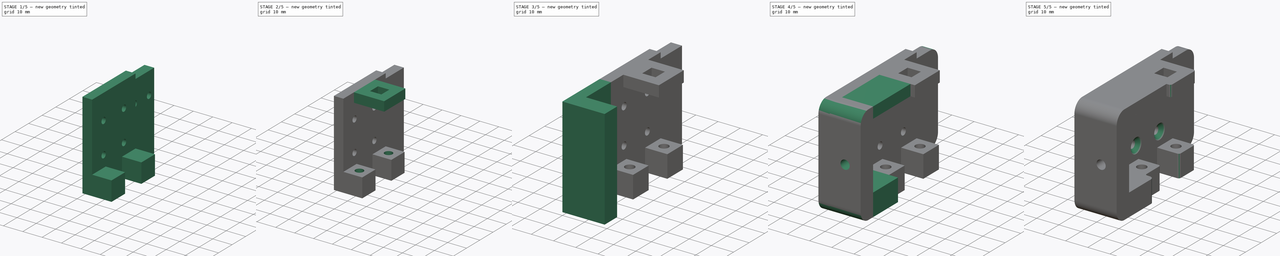
[diagram: build sequence overview — one tinted view per stage of 5, left to right]
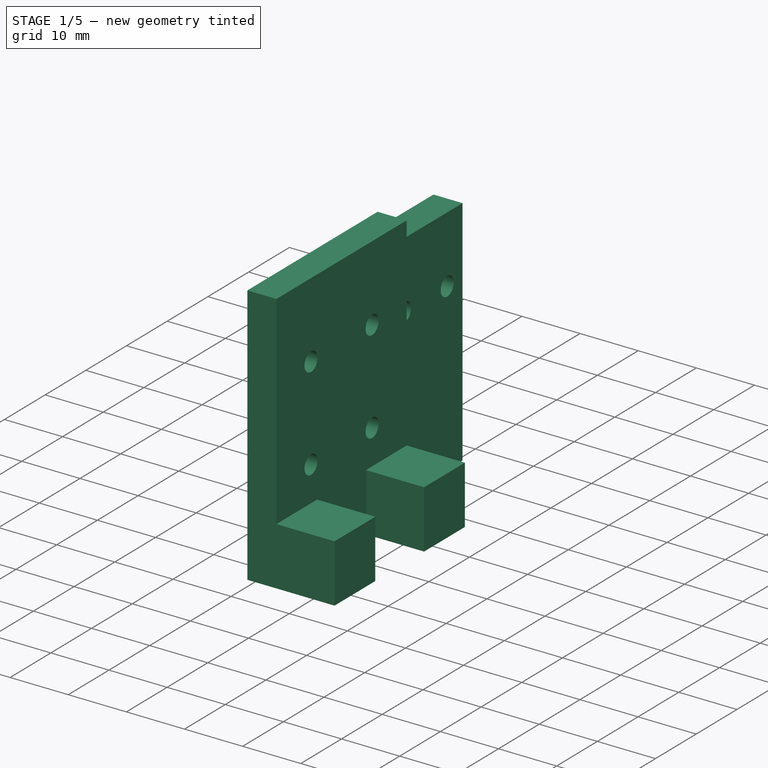
[diagram: stage 1 of 5 — iso view after this stage's code; geometry added in this stage tinted green]
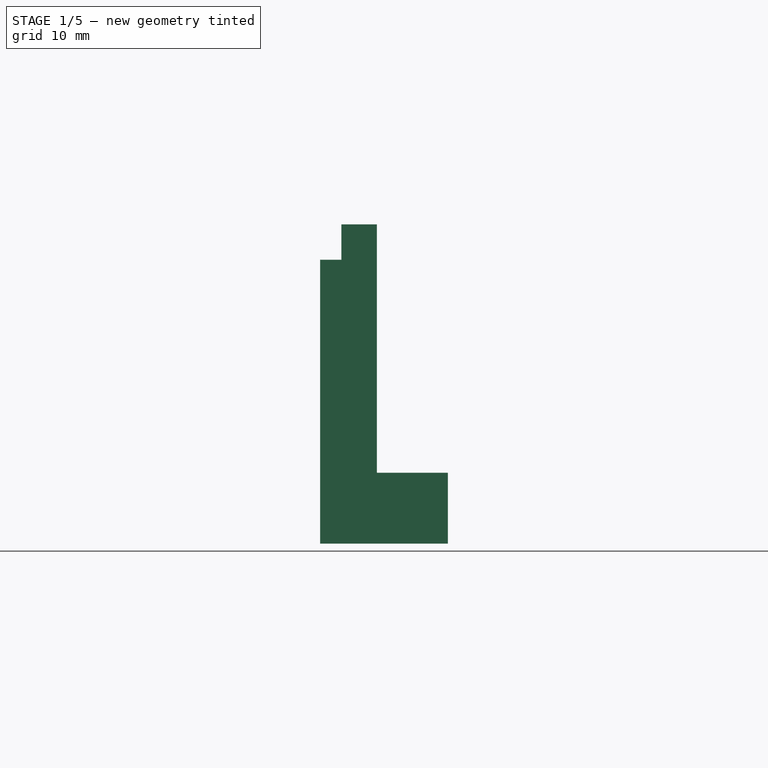
[diagram: stage 1 of 5 — front view after this stage's code; geometry added in this stage tinted green]
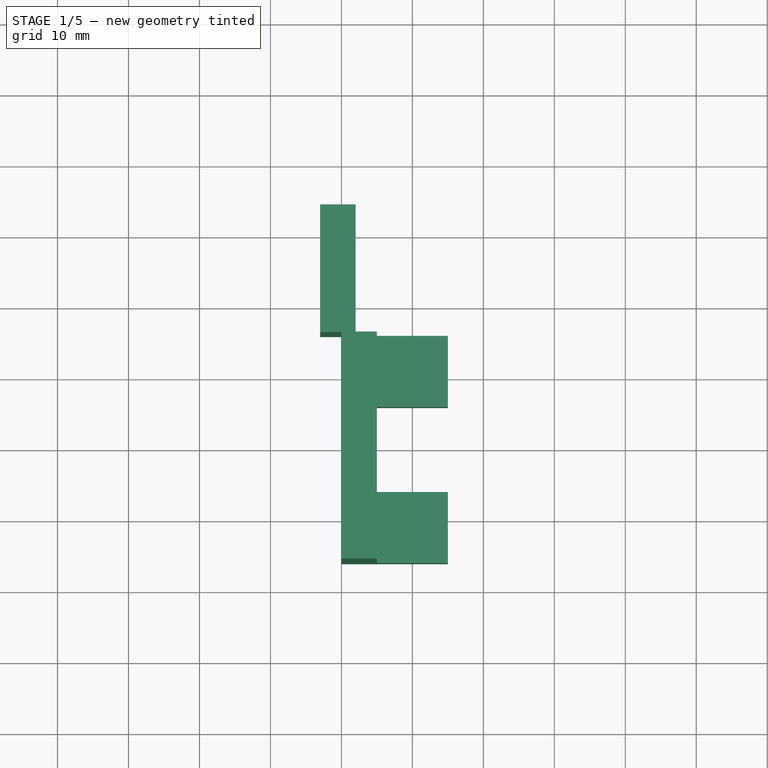
[diagram: stage 1 of 5 — top view after this stage's code; geometry added in this stage tinted green]
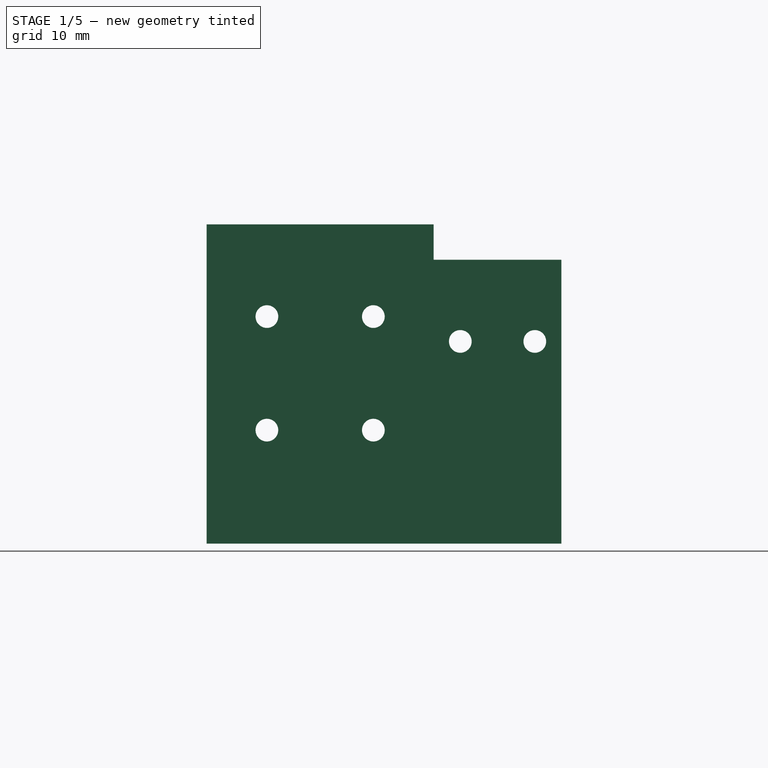
[diagram: stage 1 of 5 — right view after this stage's code; geometry added in this stage tinted green]
FCSTD DOCUMENT  (FreeCAD 0.20R29177 (Git))
Label: Holder_nema_up
License: All rights reserved
LicenseURL: http://en.wikipedia.org/wiki/All_rights_reserved
objects: Sketcher::SketchObject×14, PartDesign::Pad×8, PartDesign::Plane×7, PartDesign::Pocket×6, PartDesign::Fillet×4, PartDesign::Hole×1, PartDesign::Body×1
note: 60 computed .brp shape members not serialized (recipe doc carries the construction recipe); baked Part::Feature solids carry a one-line shape summary decoded from their .brp

FEATURE [Sketcher::SketchObject] Sketch
  FullyConstrained = false
  MapMode = 5
  Placement = pos=(0,0,0) rot=(0.57735,0.57735,0.57735;2.0944rad)
  Support = -> [YZ_Plane]
  sketch-geometry (8):
    g0: Circle CenterX=-7.5 CenterY=28 CenterZ=0 NormalX=0 NormalY=0 NormalZ=1 AngleXU=0 Radius=1.6
    g1: Circle CenterX=7.5 CenterY=28 CenterZ=0 NormalX=0 NormalY=0 NormalZ=1 AngleXU=0 Radius=1.6
    g2: Circle CenterX=-7.5 CenterY=12 CenterZ=0 NormalX=0 NormalY=0 NormalZ=1 AngleXU=0 Radius=1.6
    g3: Circle CenterX=7.5 CenterY=12 CenterZ=0 NormalX=0 NormalY=0 NormalZ=1 AngleXU=0 Radius=1.6
    g4: LineSegment StartX=-16 StartY=41 StartZ=0 EndX=-16 EndY=-4 EndZ=0
    g5: LineSegment StartX=-16 StartY=41 StartZ=0 EndX=16 EndY=41 EndZ=0
    g6: LineSegment StartX=-16 StartY=-4 StartZ=0 EndX=16 EndY=-4 EndZ=0
    g7: LineSegment StartX=16 StartY=-4 StartZ=0 EndX=16 EndY=41 EndZ=0
  constraints (22):
    c: Distance(g2,g-2) = 7.5
    c: Distance(g0,g-2) = 7.5
    c: Distance(g1,g-2) = 7.5
    c: Distance(g3,g-2) = 7.5
    c: Distance(g2,g0) = 16
    c: Distance(g3,g1) = 16
    c: Diameter(g0) = 3.2
    c: Diameter(g1) = 3.2
    c: Diameter(g3) = 3.2
    c: Diameter(g2) = 3.2
    c: Vertical(g4)
    c: DistanceX(g4,g5) = 32
    c: Distance(g4,g-2) = 16
    c: Coincident(g5,g4)
    c: DistanceY(g4,g4) = 45
    c: Coincident(g6,g4)
    c: Horizontal(g6)
    c: PointOnObject(g7,g6)
    c: Coincident(g7,g5)
    c: Vertical(g7)
    c: Block(g6)
    c: DistanceY(g7,g7) = 45
FEATURE [PartDesign::Pad] Pad  label="Plate"
  Direction = (1,-2e-16,3e-16)
  Length = 5
  Length2 = 10
  Placement = pos=(0,0,0) rot=(0.57735,0.57735,0.57735;2.0944rad)
  Profile = -> Sketch
  ReferenceAxis = -> Sketch [N_Axis]
  Type = 0
FEATURE [Sketcher::SketchObject] Sketch001
  FullyConstrained = false
  MapMode = 5
  Placement = pos=(5,-1.1e-15,1.1e-15) rot=(0.57735,0.57735,0.57735;2.0944rad)
  Support = -> [Pad]
  sketch-geometry (8):
    g0: LineSegment StartX=-16 StartY=6 StartZ=0 EndX=-6 EndY=6 EndZ=0
    g1: LineSegment StartX=-6 StartY=6 StartZ=0 EndX=-6 EndY=-4 EndZ=0
    g2: LineSegment StartX=-6 StartY=-4 StartZ=0 EndX=-16 EndY=-4 EndZ=0
    g3: LineSegment StartX=-16 StartY=-4 StartZ=0 EndX=-16 EndY=6 EndZ=0
    g4: LineSegment StartX=16 StartY=6 StartZ=0 EndX=6 EndY=6 EndZ=0
    g5: LineSegment StartX=6 StartY=6 StartZ=0 EndX=6 EndY=-4 EndZ=0
    g6: LineSegment StartX=6 StartY=-4 StartZ=0 EndX=16 EndY=-4 EndZ=0
    g7: LineSegment StartX=16 StartY=-4 StartZ=0 EndX=16 EndY=6 EndZ=0
  constraints (20):
    c: Coincident(g0,g1)
    c: Coincident(g1,g2)
    c: Coincident(g2,g3)
    c: Coincident(g3,g0)
    c: Horizontal(g0)
    c: Horizontal(g2)
    c: Vertical(g1)
    c: Vertical(g3)
    c: Coincident(g4,g5)
    c: Coincident(g5,g6)
    c: Coincident(g6,g7)
    c: Coincident(g7,g4)
    c: Horizontal(g4)
    c: Horizontal(g6)
    c: Vertical(g5)
    c: Vertical(g7)
    c: DistanceX(g0,g0) = 10
    c: DistanceX(g4,g4) = 10
    c: DistanceY(g1,g1) = 10
    c: DistanceY(g7,g7) = 10
FEATURE [PartDesign::Pad] Pad001  label="Holder spring"
  BaseFeature = -> Pad
  Direction = (1,-4e-16,4e-16)
  Length = 10
  Length2 = 10
  Placement = pos=(0,0,0) rot=(0.57735,0.57735,0.57735;2.0944rad)
  Profile = -> Sketch001
  ReferenceAxis = -> Sketch001 [N_Axis]
  Type = 0
FEATURE [PartDesign::Plane] DatumPlane
  AttachmentOffset = pos=(0,0,-3) rot=(0,0,1;0rad)
  Length = 87.9771
  MapMode = 5
  Placement = pos=(2,-4e-16,4e-16) rot=(0.57735,0.57735,0.57735;2.0944rad)
  ResizeMode = 0
  Support = -> [Pad001]
  Width = 79.9771
FEATURE [Sketcher::SketchObject] Sketch002
  FullyConstrained = false
  MapMode = 5
  Placement = pos=(2,-4e-16,4e-16) rot=(0.57735,0.57735,0.57735;2.0944rad)
  Support = -> [DatumPlane]
  sketch-geometry (4):
    g0: LineSegment StartX=16 StartY=-4 StartZ=0 EndX=34 EndY=-4 EndZ=0
    g1: LineSegment StartX=34 StartY=-4 StartZ=0 EndX=34 EndY=36 EndZ=0
    g2: LineSegment StartX=34 StartY=36 StartZ=0 EndX=16 EndY=36 EndZ=0
    g3: LineSegment StartX=16 StartY=36 StartZ=0 EndX=16 EndY=-4 EndZ=0
  constraints (9):
    c: Coincident(g0,g1)
    c: Coincident(g1,g2)
    c: Coincident(g2,g3)
    c: Coincident(g3,g0)
    c: Horizontal(g0)
    c: Horizontal(g2)
    c: Vertical(g1)
    c: Vertical(g3)
    c: DistanceX(g0,g0) = 18
FEATURE [PartDesign::Pad] Pad002  label="Zerro sensor plate"
  BaseFeature = -> Pad001
  Direction = (1,-7e-16,4e-16)
  Length = 5
  Length2 = 10
  Placement = pos=(0,0,0) rot=(0.57735,0.57735,0.57735;2.0944rad)
  Profile = -> Sketch002
  ReferenceAxis = -> Sketch002 [N_Axis]
  Reversed = true
  Type = 0
FEATURE [PartDesign::Plane] DatumPlane001
  Length = 87.9771
  MapMode = 5
  Placement = pos=(2,-1.3e-15,9e-16) rot=(0.57735,0.57735,0.57735;2.0944rad)
  ResizeMode = 0
  Support = -> [Pad002]
  Width = 79.9771
FEATURE [Sketcher::SketchObject] Sketch003
  FullyConstrained = false
  MapMode = 5
  Placement = pos=(2,-1.3e-15,9e-16) rot=(0.57735,0.57735,0.57735;2.0944rad)
  Support = -> [DatumPlane001]
  sketch-geometry (4):
    g0: Circle CenterX=19.7491 CenterY=24.5 CenterZ=0 NormalX=0 NormalY=0 NormalZ=1 AngleXU=0 Radius=1.6
    g1: Circle CenterX=30.2491 CenterY=24.5 CenterZ=0 NormalX=0 NormalY=0 NormalZ=1 AngleXU=0 Radius=1.6
    g2: GeomPoint X=30.269 Y=-4 Z=0
    g3: GeomPoint X=19.735 Y=-4 Z=0
  constraints (5):
    c: Distance(g0,g1) = 10.5
    c: Distance(g1,g2) = 28.5
    c: Distance(g3,g0) = 28.5
    c: Diameter(g1) = 3.2
    c: Diameter(g0) = 3.2
FEATURE [PartDesign::Pocket] Pocket  label="Zerro sensor hole"
  BaseFeature = -> Pad002
  Direction = (-1,6e-16,-4e-16)
  Length = 5
  Length2 = 5
  Placement = pos=(0,0,0) rot=(0.57735,0.57735,0.57735;2.0944rad)
  Profile = -> Sketch003
  ReferenceAxis = -> Sketch003 [N_Axis]
  Type = 0
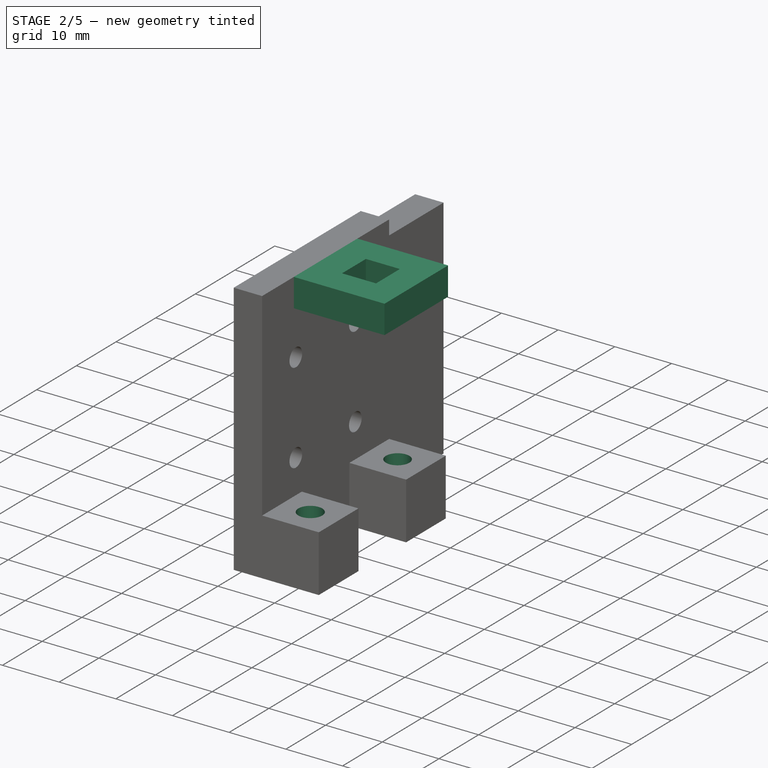
[diagram: stage 2 of 5 — iso view after this stage's code; geometry added in this stage tinted green]
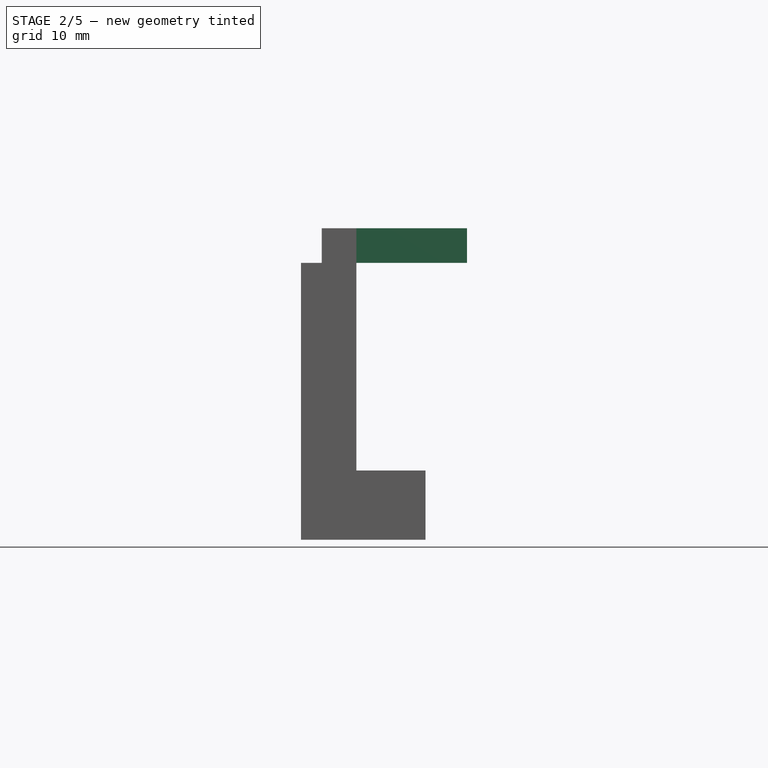
[diagram: stage 2 of 5 — front view after this stage's code; geometry added in this stage tinted green]
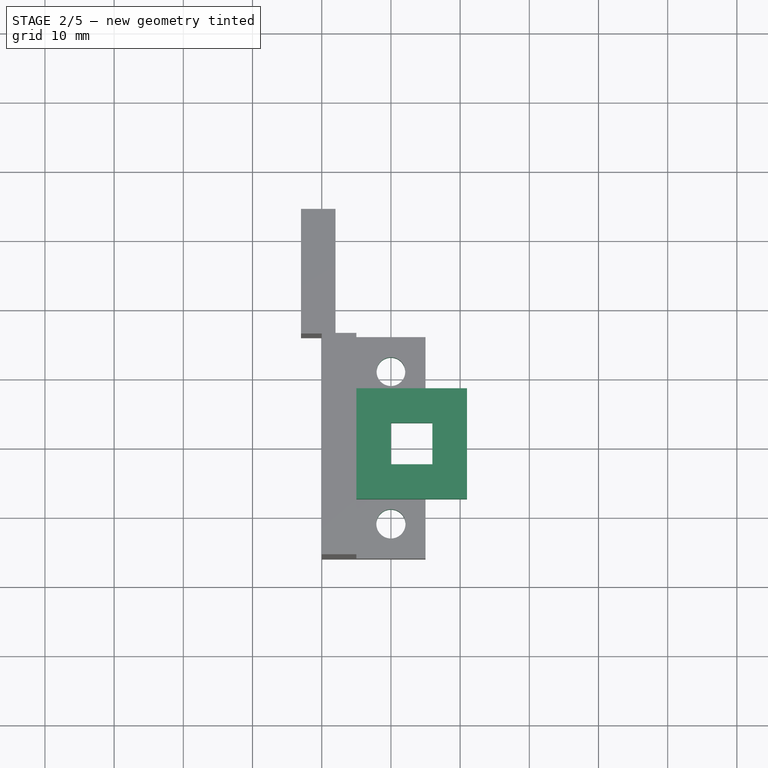
[diagram: stage 2 of 5 — top view after this stage's code; geometry added in this stage tinted green]
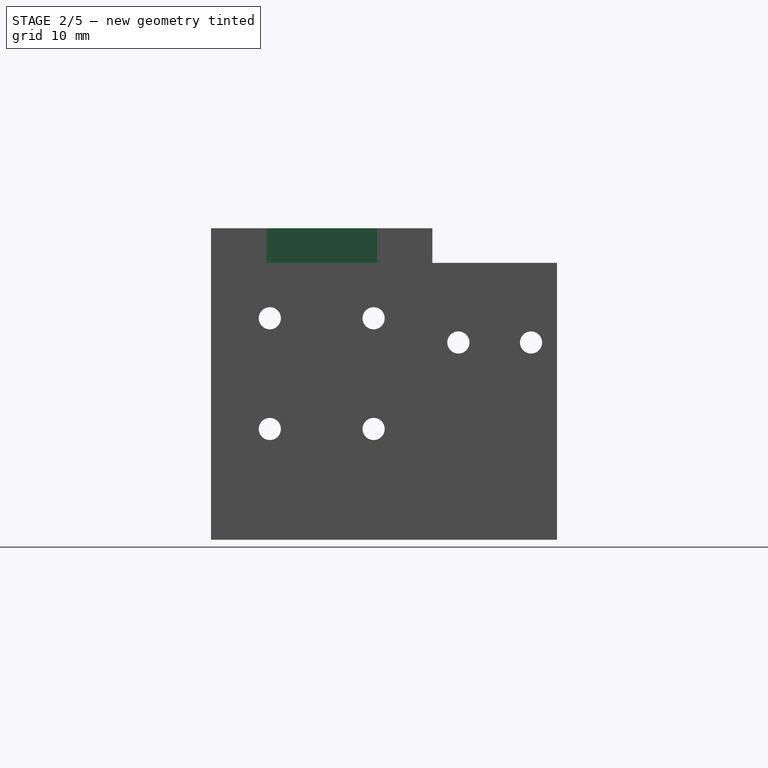
[diagram: stage 2 of 5 — right view after this stage's code; geometry added in this stage tinted green]
FEATURE [PartDesign::Plane] DatumPlane003
  Length = 86.1655
  MapMode = 5
  Placement = pos=(2e-15,-1e-15,-4) rot=(0.707107,0.707107,0;3.14159rad)
  ResizeMode = 0
  Width = 62.1655
FEATURE [Sketcher::SketchObject] Sketch006
  FullyConstrained = false
  MapMode = 5
  Placement = pos=(2e-15,-1e-15,-4) rot=(0.707107,0.707107,0;3.14159rad)
  Support = -> [DatumPlane003]
  sketch-geometry (2):
    g0: Circle CenterX=-11 CenterY=10 CenterZ=0 NormalX=0 NormalY=0 NormalZ=1 AngleXU=0 Radius=4.1
    g1: Circle CenterX=11 CenterY=10 CenterZ=0 NormalX=0 NormalY=0 NormalZ=1 AngleXU=0 Radius=4.1
  constraints (2):
    c: Diameter(g1) = 8.2
    c: Diameter(g0) = 8.2
FEATURE [PartDesign::Pocket] Pocket002  label="Spring hole"
  BaseFeature = -> Pocket
  Direction = (0,0,1)
  Length = 5
  Length2 = 5
  Placement = pos=(0,0,0) rot=(0.57735,0.57735,0.57735;2.0944rad)
  Profile = -> Sketch006
  ReferenceAxis = -> Sketch006 [N_Axis]
  Type = 0
FEATURE [Sketcher::SketchObject] Sketch007
  FullyConstrained = false
  MapMode = 5
  Placement = pos=(2e-15,-1e-15,-4) rot=(0.707107,0.707107,0;3.14159rad)
  Support = -> [DatumPlane003]
  sketch-geometry (2):
    g0: Circle CenterX=-11 CenterY=10 CenterZ=0 NormalX=0 NormalY=0 NormalZ=1 AngleXU=0 Radius=2.10771
    g1: Circle CenterX=11 CenterY=10 CenterZ=0 NormalX=0 NormalY=0 NormalZ=1 AngleXU=0 Radius=2.06806
FEATURE [PartDesign::Pocket] Pocket003  label="Bolt hole"
  BaseFeature = -> Pocket002
  Direction = (0,0,1)
  Length = 10
  Length2 = 5
  Placement = pos=(0,0,0) rot=(0.57735,0.57735,0.57735;2.0944rad)
  Profile = -> Sketch007
  ReferenceAxis = -> Sketch007 [N_Axis]
  Type = 0
FEATURE [Sketcher::SketchObject] Sketch008
  FullyConstrained = false
  MapMode = 5
  Placement = pos=(5,-1.1e-15,1.1e-15) rot=(0.57735,0.57735,0.57735;2.0944rad)
  Support = -> [Pocket003]
  sketch-geometry (4):
    g0: LineSegment StartX=-8 StartY=41 StartZ=0 EndX=8 EndY=41 EndZ=0
    g1: LineSegment StartX=8 StartY=41 StartZ=0 EndX=8 EndY=36 EndZ=0
    g2: LineSegment StartX=8 StartY=36 StartZ=0 EndX=-8 EndY=36 EndZ=0
    g3: LineSegment StartX=-8 StartY=36 StartZ=0 EndX=-8 EndY=41 EndZ=0
  constraints (10):
    c: Coincident(g0,g1)
    c: Coincident(g1,g2)
    c: Coincident(g2,g3)
    c: Coincident(g3,g0)
    c: Horizontal(g0)
    c: Horizontal(g2)
    c: Vertical(g1)
    c: Vertical(g3)
    c: DistanceX(g0,g0) = 16
    c: Distance(g0,g-2) = 8
FEATURE [PartDesign::Pad] Pad003  label="Sensor plate"
  BaseFeature = -> Pocket003
  Direction = (1,-1.8e-15,1e-15)
  Length = 16
  Length2 = 10
  Placement = pos=(0,0,0) rot=(0.57735,0.57735,0.57735;2.0944rad)
  Profile = -> Sketch008
  ReferenceAxis = -> Sketch008 [N_Axis]
  Type = 0
FEATURE [PartDesign::Plane] DatumPlane004
  Length = 86.1655
  MapMode = 5
  Placement = pos=(-4.1e-14,1.35e-14,41) rot=(0,0,-1;1.5708rad)
  ResizeMode = 0
  Support = -> [Pad003]
  Width = 62.1655
FEATURE [Sketcher::SketchObject] Sketch009
  FullyConstrained = false
  MapMode = 5
  Placement = pos=(-4.1e-14,1.35e-14,41) rot=(0,0,-1;1.5708rad)
  Support = -> [DatumPlane004]
  sketch-geometry (6):
    g0: LineSegment StartX=-3.00411 StartY=16 StartZ=0 EndX=2.99589 EndY=16 EndZ=0
    g1: LineSegment StartX=2.99589 StartY=16 StartZ=0 EndX=2.99589 EndY=10 EndZ=0
    g2: LineSegment StartX=2.99589 StartY=10 StartZ=0 EndX=-3.00411 EndY=10 EndZ=0
    g3: LineSegment StartX=-3.00411 StartY=10 StartZ=0 EndX=-3.00411 EndY=16 EndZ=0
    g4: GeomPoint X=-3 Y=21 Z=0
    g5: GeomPoint X=-8.00411 Y=16 Z=0
  constraints (12):
    c: Coincident(g0,g1)
    c: Coincident(g1,g2)
    c: Coincident(g2,g3)
    c: Coincident(g3,g0)
    c: Horizontal(g0)
    c: Horizontal(g2)
    c: Vertical(g1)
    c: Vertical(g3)
    c: DistanceX(g2,g2) = 6
    c: DistanceY(g1,g1) = 6
    c: Distance(g0,g4) = 5
    c: Distance(g5,g0) = 5
FEATURE [PartDesign::Pocket] Pocket004  label="Sensor bolt hole"
  BaseFeature = -> Pad003
  Direction = (1.1e-15,-4e-16,-1)
  Length = 5
  Length2 = 5
  Placement = pos=(0,0,0) rot=(0.57735,0.57735,0.57735;2.0944rad)
  Profile = -> Sketch009
  ReferenceAxis = -> Sketch009 [N_Axis]
  Type = 0
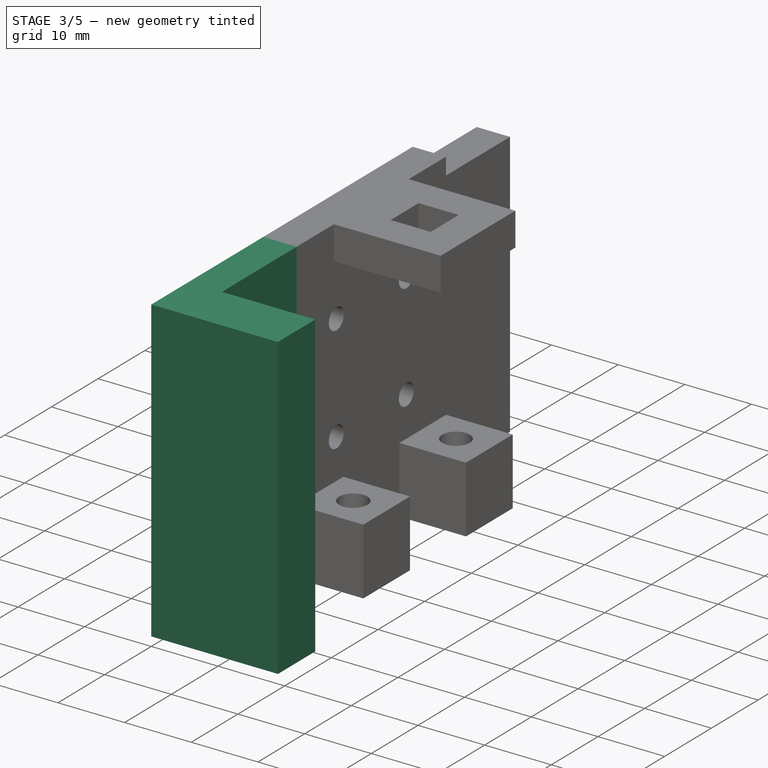
[diagram: stage 3 of 5 — iso view after this stage's code; geometry added in this stage tinted green]
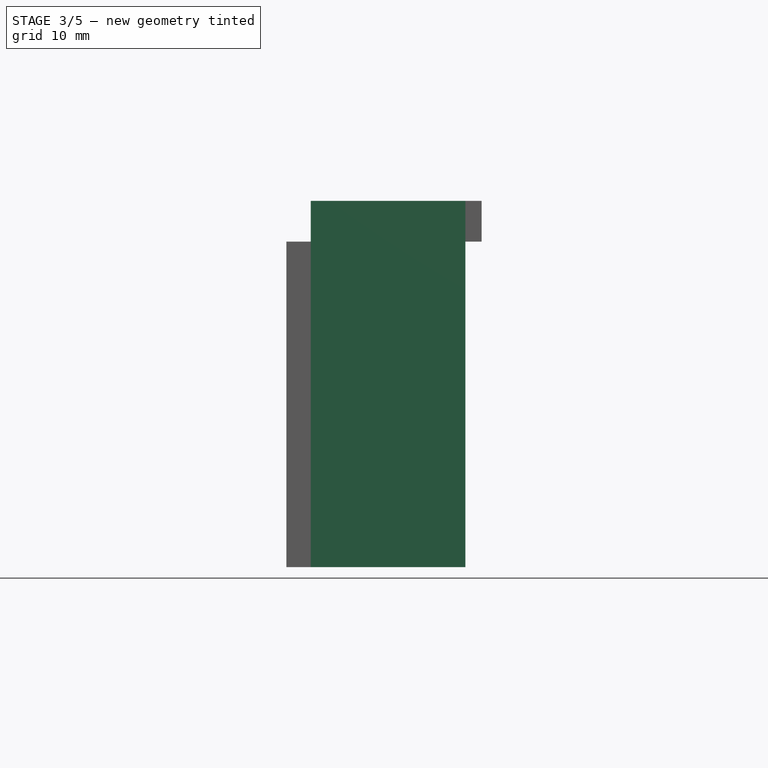
[diagram: stage 3 of 5 — front view after this stage's code; geometry added in this stage tinted green]
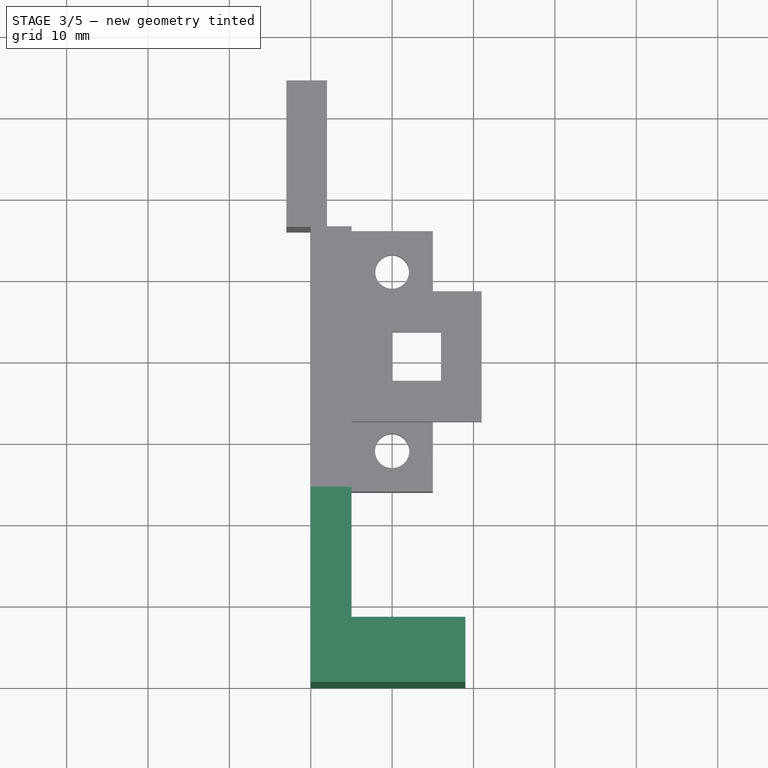
[diagram: stage 3 of 5 — top view after this stage's code; geometry added in this stage tinted green]
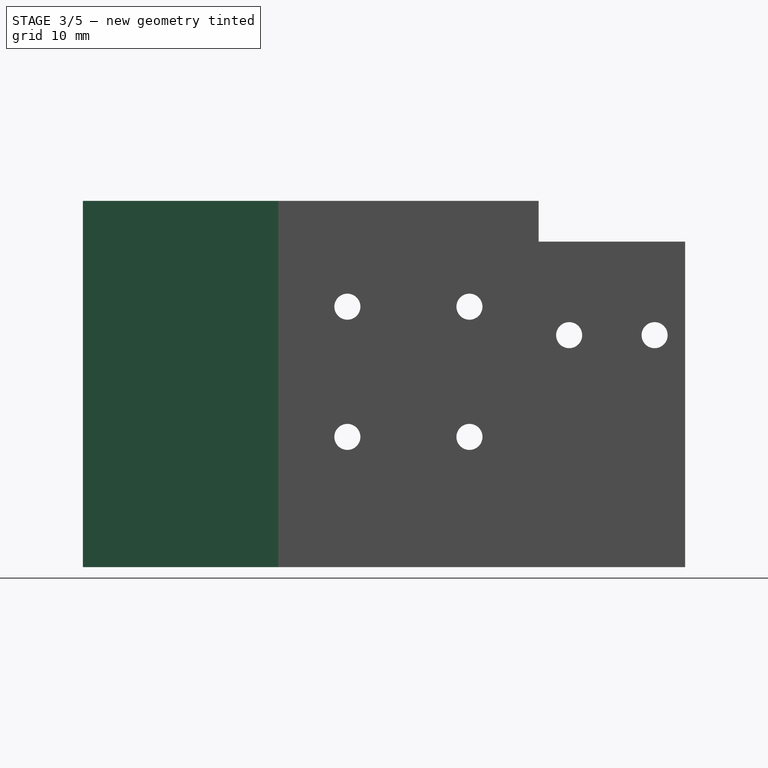
[diagram: stage 3 of 5 — right view after this stage's code; geometry added in this stage tinted green]
FEATURE [PartDesign::Plane] DatumPlane005
  Length = 87.9771
  MapMode = 5
  Placement = pos=(5,-1e-15,1e-15) rot=(0.57735,0.57735,0.57735;2.0944rad)
  ResizeMode = 0
  Width = 79.9771
FEATURE [Sketcher::SketchObject] Sketch010
  FullyConstrained = false
  MapMode = 5
  Placement = pos=(5,-1e-15,1e-15) rot=(0.57735,0.57735,0.57735;2.0944rad)
  Support = -> [DatumPlane005]
  sketch-geometry (4):
    g0: LineSegment StartX=-16 StartY=-4 StartZ=0 EndX=-40 EndY=-4 EndZ=0
    g1: LineSegment StartX=-40 StartY=-4 StartZ=0 EndX=-40 EndY=41 EndZ=0
    g2: LineSegment StartX=-40 StartY=41 StartZ=0 EndX=-16 EndY=41 EndZ=0
    g3: LineSegment StartX=-16 StartY=41 StartZ=0 EndX=-16 EndY=-4 EndZ=0
  constraints (9):
    c: Coincident(g0,g1)
    c: Coincident(g1,g2)
    c: Coincident(g2,g3)
    c: Coincident(g3,g0)
    c: Horizontal(g0)
    c: Horizontal(g2)
    c: Vertical(g1)
    c: Vertical(g3)
    c: DistanceX(g2,g2) = 24
FEATURE [PartDesign::Pad] Pad004
  BaseFeature = -> Pocket004
  Direction = (1,0,0)
  Length = 5
  Length2 = 10
  Placement = pos=(0,0,0) rot=(0.57735,0.57735,0.57735;2.0944rad)
  Profile = -> Sketch010
  ReferenceAxis = -> Sketch010 [N_Axis]
  Reversed = true
  Type = 0
FEATURE [Sketcher::SketchObject] Sketch012
  FullyConstrained = false
  MapMode = 5
  Placement = pos=(8,-1.9e-14,0) rot=(-0.57735,-0.57735,0.57735;2.0944rad)
  sketch-geometry (1):
    g0: Circle CenterX=-22 CenterY=10 CenterZ=0 NormalX=0 NormalY=0 NormalZ=1 AngleXU=0 Radius=2.14953
FEATURE [PartDesign::Pocket] Pocket005
  BaseFeature = -> Pad004
  Direction = (1,-1.9e-15,1e-16)
  Length = 5
  Length2 = 5
  Placement = pos=(0,0,0) rot=(0.57735,0.57735,0.57735;2.0944rad)
  Profile = -> Sketch012
  ReferenceAxis = -> Sketch012 [N_Axis]
  Type = 0
FEATURE [Sketcher::SketchObject] Sketch013
  FullyConstrained = false
  MapMode = 5
  Placement = pos=(5,0,0) rot=(0.57735,0.57735,0.57735;2.0944rad)
  Support = -> [Pad004]
  sketch-geometry (4):
    g0: LineSegment StartX=-40 StartY=41 StartZ=0 EndX=-32 EndY=41 EndZ=0
    g1: LineSegment StartX=-32 StartY=41 StartZ=0 EndX=-32 EndY=-4 EndZ=0
    g2: LineSegment StartX=-32 StartY=-4 StartZ=0 EndX=-40 EndY=-4 EndZ=0
    g3: LineSegment StartX=-40 StartY=-4 StartZ=0 EndX=-40 EndY=41 EndZ=0
  constraints (8):
    c: Coincident(g0,g1)
    c: Coincident(g1,g2)
    c: Coincident(g2,g3)
    c: Coincident(g3,g0)
    c: Horizontal(g0)
    c: Horizontal(g2)
    c: Vertical(g1)
    c: Vertical(g3)
FEATURE [PartDesign::Pad] Pad005
  BaseFeature = -> Pocket005
  Direction = (1,1e-16,1e-16)
  Length = 14
  Length2 = 10
  Placement = pos=(0,0,0) rot=(0.57735,0.57735,0.57735;2.0944rad)
  Profile = -> Sketch013
  ReferenceAxis = -> Sketch013 [N_Axis]
  Type = 0
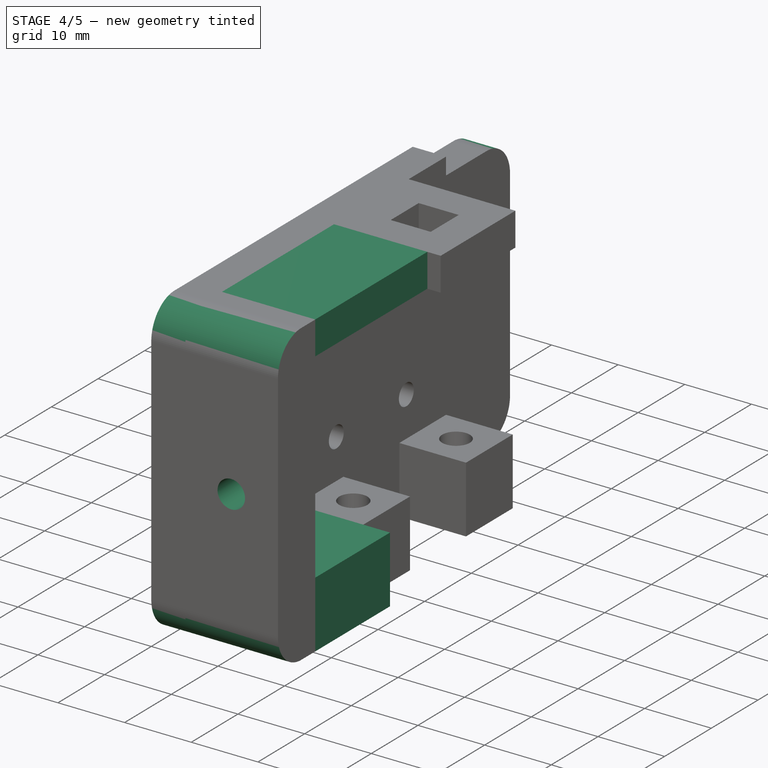
[diagram: stage 4 of 5 — iso view after this stage's code; geometry added in this stage tinted green]
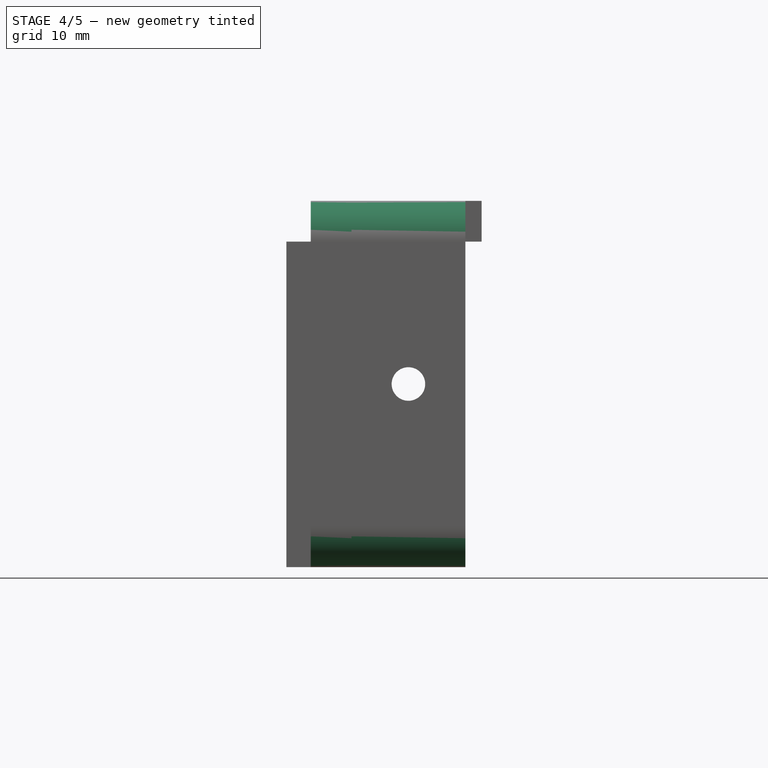
[diagram: stage 4 of 5 — front view after this stage's code; geometry added in this stage tinted green]
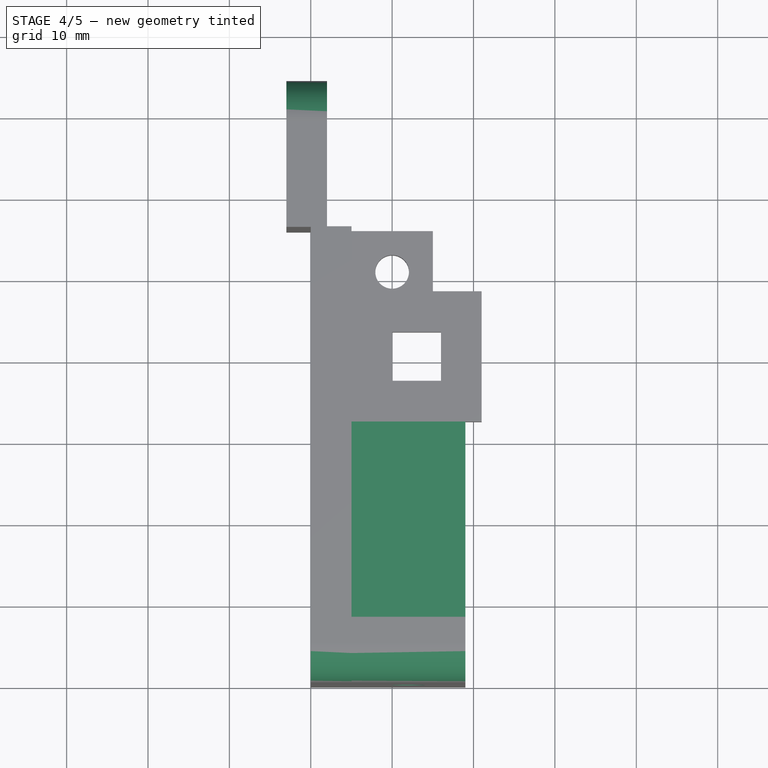
[diagram: stage 4 of 5 — top view after this stage's code; geometry added in this stage tinted green]
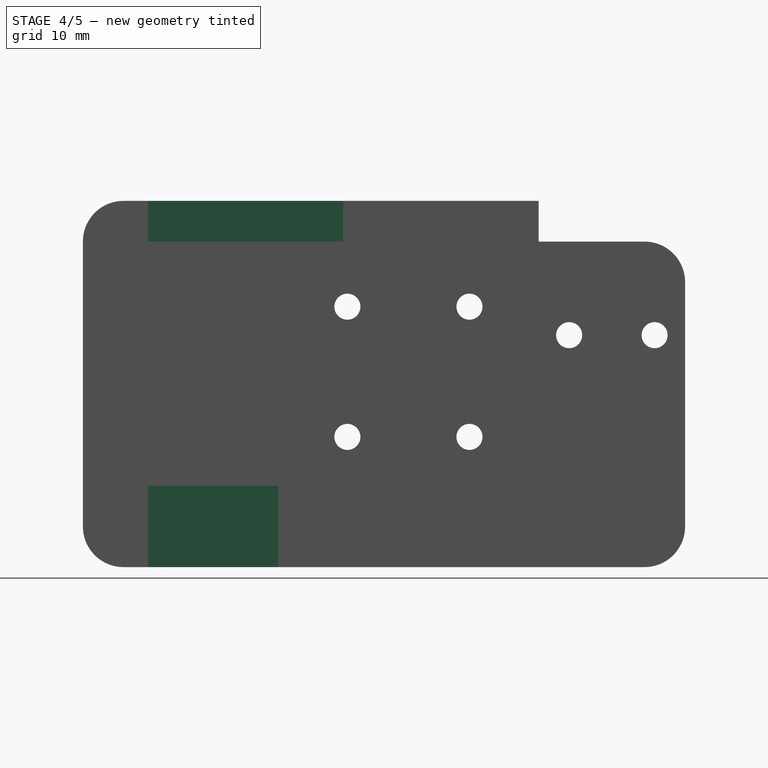
[diagram: stage 4 of 5 — right view after this stage's code; geometry added in this stage tinted green]
FEATURE [Sketcher::SketchObject] Sketch014
  FullyConstrained = false
  MapMode = 5
  Placement = pos=(4.4e-15,-40,0) rot=(0.57735,0.57735,-0.57735;2.0944rad)
  Support = -> [Pad005]
  sketch-geometry (4):
    g0: Circle CenterX=-18.5 CenterY=12 CenterZ=0 NormalX=0 NormalY=0 NormalZ=1 AngleXU=0 Radius=2.06132
    g1: GeomPoint X=-41 Y=17 Z=0
    g2: GeomPoint X=4 Y=17 Z=0
    g3: GeomPoint X=4 Y=12 Z=0
  constraints (2):
    c: Distance(g1,g2) = 45
    c: Distance(g3,g0) = 22.5
FEATURE [PartDesign::Pocket] Pocket006
  BaseFeature = -> Pad005
  Direction = (-1e-16,1,1e-16)
  Length = 8
  Length2 = 5
  Placement = pos=(0,0,0) rot=(0.57735,0.57735,0.57735;2.0944rad)
  Profile = -> Sketch014
  ReferenceAxis = -> Sketch014 [N_Axis]
  Type = 0
FEATURE [PartDesign::Plane] DatumPlane006
  Length = 86.1655
  MapMode = 5
  Placement = pos=(9e-16,4e-16,-4) rot=(0.707107,0.707107,0;3.14159rad)
  ResizeMode = 0
  Support = -> [Pocket006]
  Width = 62.1655
FEATURE [Sketcher::SketchObject] Sketch015
  FullyConstrained = false
  MapMode = 5
  Placement = pos=(9e-16,4e-16,-4) rot=(0.707107,0.707107,0;3.14159rad)
  Support = -> [DatumPlane006]
  sketch-geometry (4):
    g0: LineSegment StartX=-32 StartY=19 StartZ=0 EndX=-32 EndY=5 EndZ=0
    g1: LineSegment StartX=-32 StartY=5 StartZ=0 EndX=-16 EndY=5 EndZ=0
    g2: LineSegment StartX=-16 StartY=5 StartZ=0 EndX=-16 EndY=19 EndZ=0
    g3: LineSegment StartX=-16 StartY=19 StartZ=0 EndX=-32 EndY=19 EndZ=0
  constraints (7):
    c: Vertical(g0)
    c: Coincident(g1,g0)
    c: Horizontal(g1)
    c: Coincident(g2,g1)
    c: Vertical(g2)
    c: Coincident(g3,g0)
    c: Horizontal(g3)
FEATURE [PartDesign::Pad] Pad006
  BaseFeature = -> Pocket006
  Direction = (2e-16,0,-1)
  Length = 10
  Length2 = 10
  Placement = pos=(0,0,0) rot=(0.57735,0.57735,0.57735;2.0944rad)
  Profile = -> Sketch015
  ReferenceAxis = -> Sketch015 [N_Axis]
  Reversed = true
  Type = 0
FEATURE [PartDesign::Plane] DatumPlane007
  Length = 86.1655
  MapMode = 5
  Placement = pos=(-9e-15,-4.5e-15,41) rot=(0,0,-1;1.5708rad)
  ResizeMode = 0
  Support = -> [Pad006]
  Width = 62.1655
FEATURE [Sketcher::SketchObject] Sketch016
  FullyConstrained = false
  MapMode = 5
  Placement = pos=(-9e-15,-4.5e-15,41) rot=(0,0,-1;1.5708rad)
  Support = -> [DatumPlane007]
  sketch-geometry (4):
    g0: LineSegment StartX=32 StartY=19 StartZ=0 EndX=32 EndY=5 EndZ=0
    g1: LineSegment StartX=32 StartY=5 StartZ=0 EndX=8 EndY=5 EndZ=0
    g2: LineSegment StartX=8 StartY=5 StartZ=0 EndX=8 EndY=19 EndZ=0
    g3: LineSegment StartX=8 StartY=19 StartZ=0 EndX=32 EndY=19 EndZ=0
  constraints (8):
    c: Vertical(g0)
    c: Coincident(g1,g0)
    c: Horizontal(g1)
    c: Coincident(g2,g1)
    c: Vertical(g2)
    c: Coincident(g3,g2)
    c: Coincident(g3,g0)
    c: Horizontal(g3)
FEATURE [PartDesign::Pad] Pad007
  BaseFeature = -> Pad006
  Direction = (-2e-16,1e-16,1)
  Length = 5
  Length2 = 10
  Placement = pos=(0,0,0) rot=(0.57735,0.57735,0.57735;2.0944rad)
  Profile = -> Sketch016
  ReferenceAxis = -> Sketch016 [N_Axis]
  Reversed = true
  Type = 0
FEATURE [PartDesign::Fillet] Fillet
  Base = -> Pad007 [Edge58,Edge114,Edge50,Edge108]
  BaseFeature = -> Pad007
  Placement = pos=(0,0,0) rot=(0.57735,0.57735,0.57735;2.0944rad)
  Radius = 5
  SupportTransform = false
  UseAllEdges = false
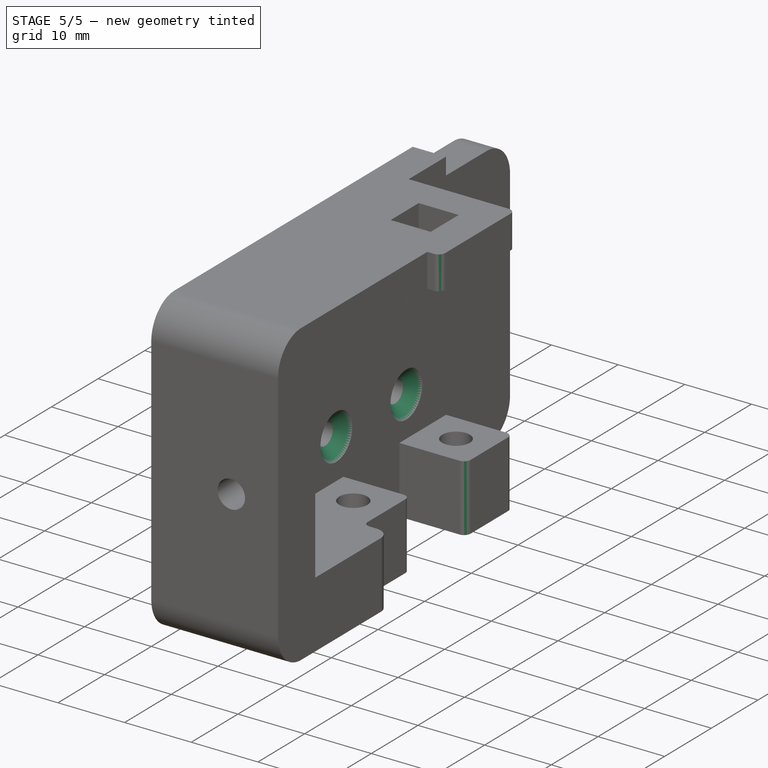
[diagram: stage 5 of 5 — iso view after this stage's code; geometry added in this stage tinted green]
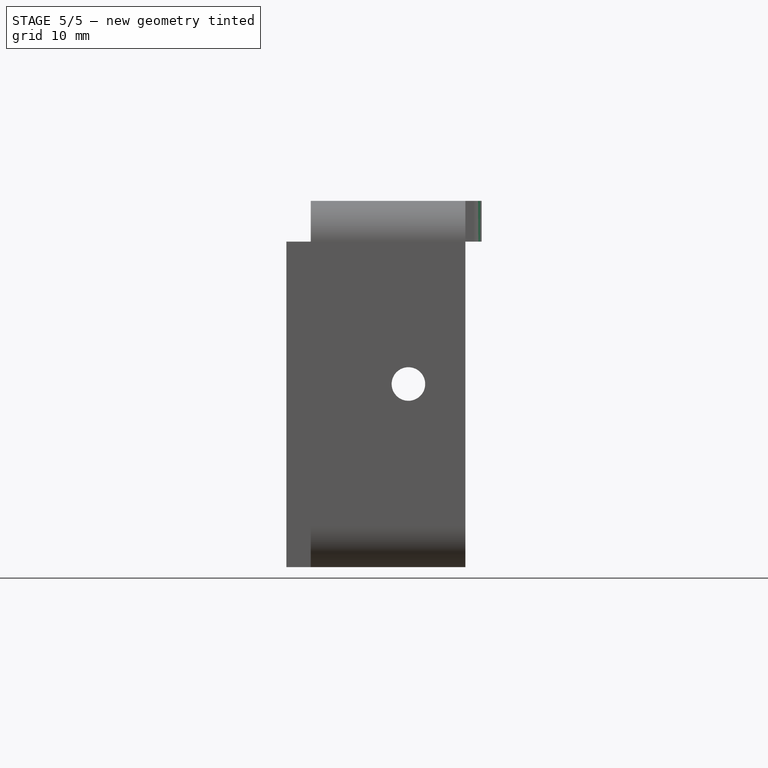
[diagram: stage 5 of 5 — front view after this stage's code; geometry added in this stage tinted green]
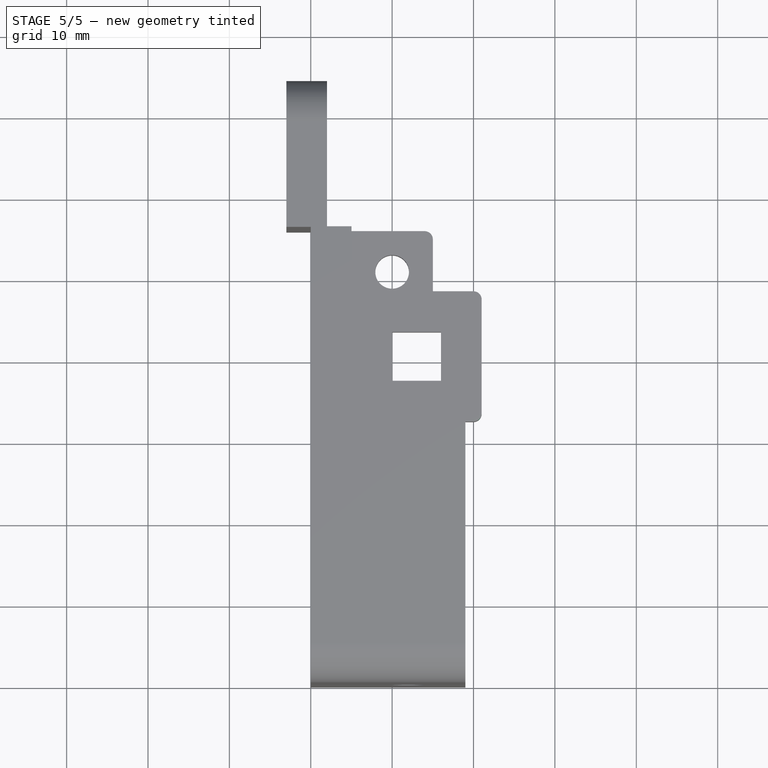
[diagram: stage 5 of 5 — top view after this stage's code; geometry added in this stage tinted green]
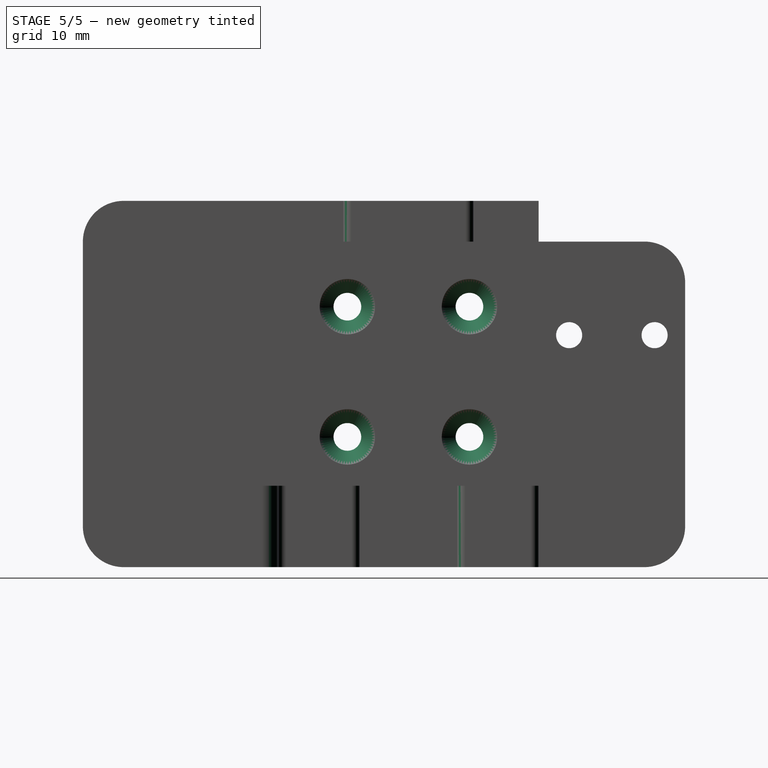
[diagram: stage 5 of 5 — right view after this stage's code; geometry added in this stage tinted green]
FEATURE [PartDesign::Fillet] Fillet001
  Base = -> Fillet [Edge79]
  BaseFeature = -> Fillet
  Placement = pos=(0,0,0) rot=(0.57735,0.57735,0.57735;2.0944rad)
  Radius = 2
  SupportTransform = false
  UseAllEdges = false
FEATURE [PartDesign::Fillet] Fillet002
  Base = -> Fillet001 [Edge23]
  BaseFeature = -> Fillet001
  Placement = pos=(0,0,0) rot=(0.57735,0.57735,0.57735;2.0944rad)
  Radius = 1
  SupportTransform = false
  UseAllEdges = false
FEATURE [PartDesign::Fillet] Fillet003
  Base = -> Fillet002 [Edge33,Edge127,Edge148,Edge120,Edge153]
  BaseFeature = -> Fillet002
  Placement = pos=(0,0,0) rot=(0.57735,0.57735,0.57735;2.0944rad)
  Radius = 1
  SupportTransform = false
  UseAllEdges = false
FEATURE [PartDesign::Hole] Hole
  BaseFeature = -> Fillet003
  CustomThreadClearance = 0
  Depth = 25
  DepthType = 0
  Diameter = 3.4
  DrillForDepth = false
  DrillPoint = 1
  DrillPointAngle = 118
  HoleCutCountersinkAngle = 90
  HoleCutCustomValues = false
  HoleCutDepth = 0
  HoleCutDiameter = 6.8
  HoleCutType = 4
  ModelThread = false
  Placement = pos=(0,0,0) rot=(0.57735,0.57735,0.57735;2.0944rad)
  Profile = -> Fillet003 [Edge48,Edge46,Edge45,Edge47]
  Tapered = false
  TaperedAngle = 90
  ThreadClass = 0
  ThreadDepth = 25
  ThreadDepthType = 0
  ThreadDirection = 0
  ThreadFit = 0
  ThreadSize = 9
  ThreadType = 2
  Threaded = false
  UseCustomThreadClearance = false
FEATURE [PartDesign::Body] Body
  Group = -> [Sketch,Pad,Sketch001,Pad001,DatumPlane,Sketch002,Pad002,DatumPlane001,Sketch003,Pocket,DatumPlane003,Sketch006,Pocket002,Sketch007,Pocket003,Sketch008,Pad003,DatumPlane004,Sketch009,Pocket004,DatumPlane005,Sketch010,Pad004,Sketch012,Pocket005,Sketch013,Pad005,Sketch014,Pocket006,DatumPlane006,Sketch015,Pad006,DatumPlane007,Sketch016,Pad007,Fillet,Fillet001,Fillet002,Fillet003,Hole]
  Origin = -> Origin
  Tip = -> Hole
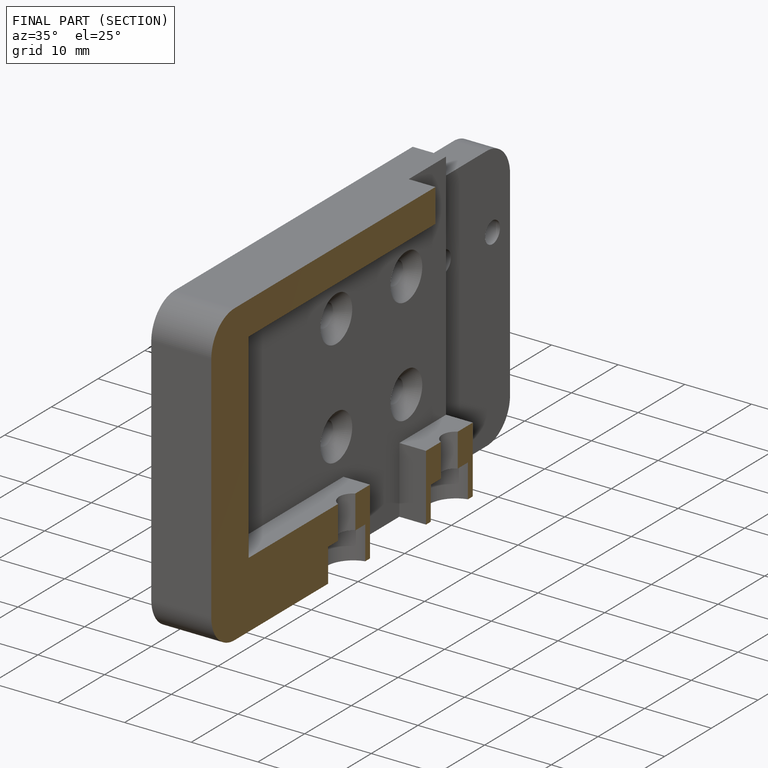
[diagram: finished part — half-section view (interior)]
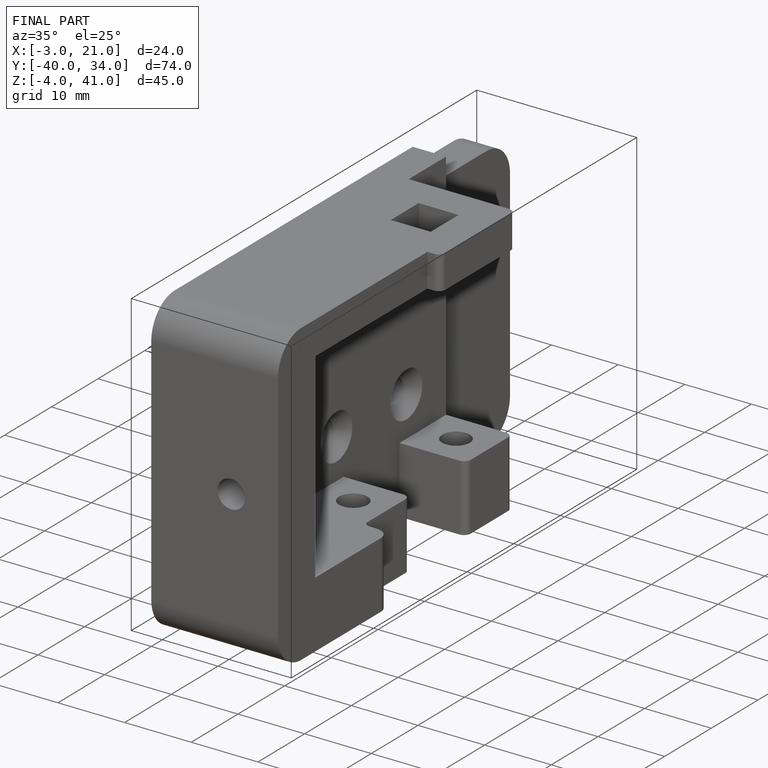
[diagram: finished part — iso view with bounding-box wireframe]
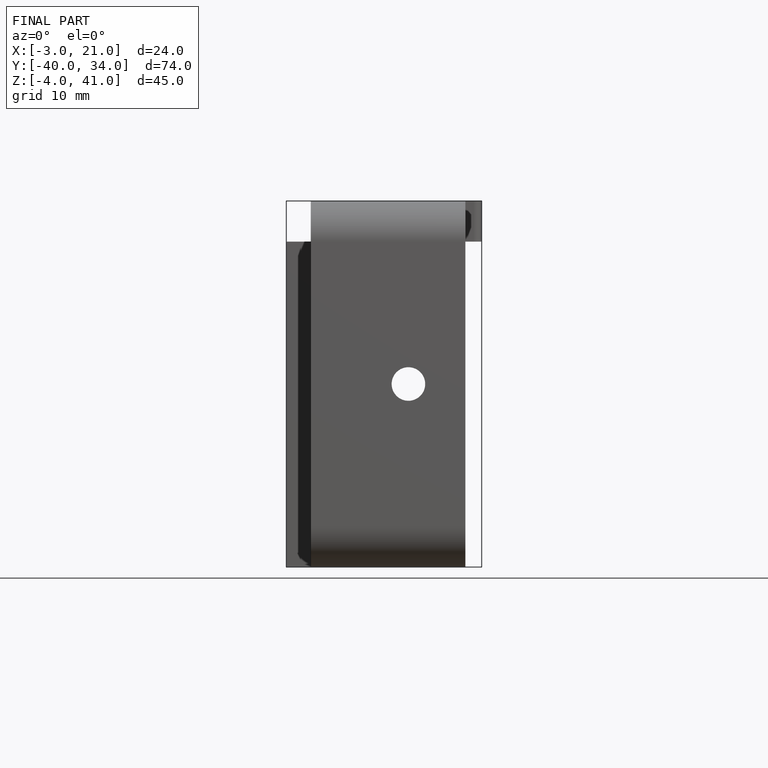
[diagram: finished part — front view with bounding-box wireframe]
